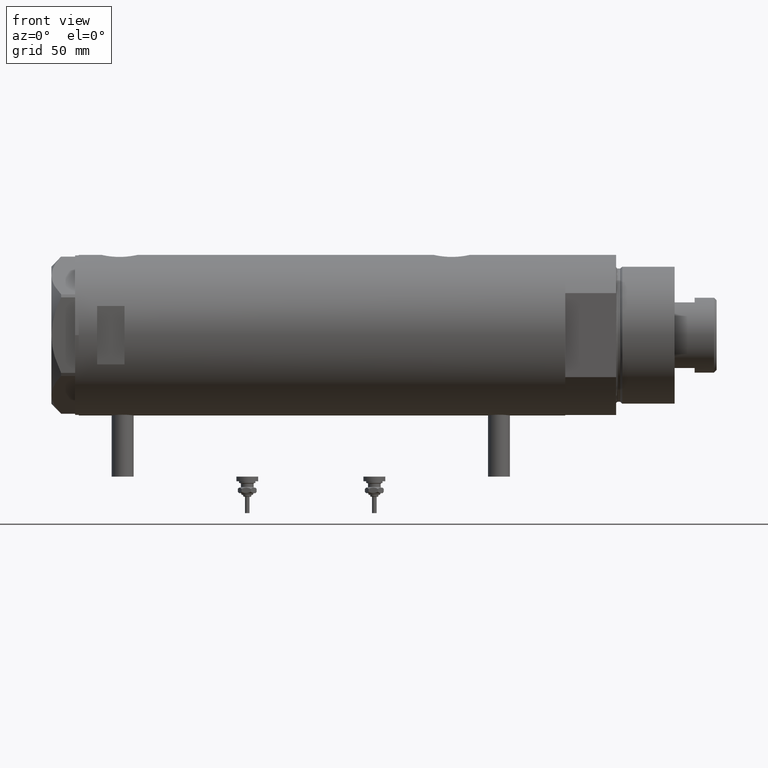
[diagram: clean part render]
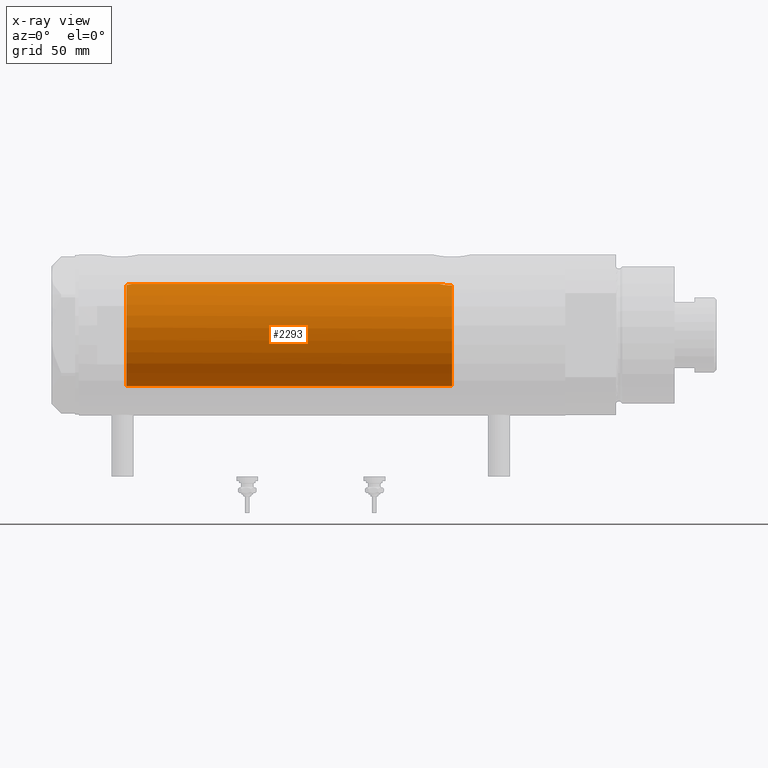
[diagram: x-ray — body ghosted, one internal face saturated and labeled with its STEP entity id]
A machine part, front view, then the same camera in x-ray: the body is ghosted and one INTERNAL B-rep face — a face not visible from any outside direction — is saturated and labeled: STEP entity #2293.
In plain terms, the highlighted cylindrical surface (partial cylindrical patch) has radius 28 mm, axis along (1, 0, -0).
Its self-contained STEP definition (entity closure, byte-faithful):
#26 = EDGE_CURVE ( 'NONE', #5754, #2008, #974, .T. ) ;
#43 = VERTEX_POINT ( 'NONE', #237 ) ;
#130 = VECTOR ( 'NONE', #2543, 1000.000000000000000 ) ;
#237 = CARTESIAN_POINT ( 'NONE',  ( 27.46622653369043121, -5.441176343402230664, 107.1999999999999886 ) ) ;
#260 = DIRECTION ( 'NONE',  ( 0.000000000000000000, 0.000000000000000000, -1.000000000000000000 ) ) ;
#265 = AXIS2_PLACEMENT_3D ( 'NONE', #3896, #2107, #5848 ) ;
#298 = CARTESIAN_POINT ( 'NONE',  ( 27.43032278742160912, -5.620674311437150017, -67.67201933177626927 ) ) ;
#326 = CARTESIAN_POINT ( 'NONE',  ( 27.36461315879793688, -5.931995402771978121, -68.24427370164927709 ) ) ;
#402 = DIRECTION ( 'NONE',  ( -1.000000000000000000, 0.000000000000000000, 0.000000000000000000 ) ) ;
#520 = CARTESIAN_POINT ( 'NONE',  ( -28.00000000000000000, 0.000000000000000000, 133.1999999999999886 ) ) ;
#686 = CARTESIAN_POINT ( 'NONE',  ( 27.71590503262371641, -3.984646725731645578, 105.6568856620623507 ) ) ;
#759 = CARTESIAN_POINT ( 'NONE',  ( 27.34439869716138460, -6.024183900845911488, -68.44423424753804852 ) ) ;
#786 = CARTESIAN_POINT ( 'NONE',  ( 27.59002303441815229, -4.790793940098343029, 106.3581617652145752 ) ) ;
#795 = CARTESIAN_POINT ( 'NONE',  ( 27.98730817101647617, -0.8707001454186236167, -64.57418472479976401 ) ) ;
#822 = CARTESIAN_POINT ( 'NONE',  ( 27.86589383012873711, -2.744524676092587434, -65.11575755532261667 ) ) ;
#974 = LINE ( 'NONE', #520, #130 ) ;
#1049 = VERTEX_POINT ( 'NONE', #4712 ) ;
#1058 = CARTESIAN_POINT ( 'NONE',  ( 28.00000000000000000, 3.429011037612588487E-15, 133.1999999999999886 ) ) ;
#1063 = VERTEX_POINT ( 'NONE', #1902 ) ;
#1140 = CARTESIAN_POINT ( 'NONE',  ( 0.000000000000000000, 0.000000000000000000, -71.19999999999998863 ) ) ;
#1195 = CARTESIAN_POINT ( 'NONE',  ( 27.92172852149585793, -2.107204279616225584, 104.6607593279537269 ) ) ;
#1208 = CARTESIAN_POINT ( 'NONE',  ( 27.94978721344213923, -1.729827962054674151, -64.73650615356601179 ) ) ;
#1229 = CARTESIAN_POINT ( 'NONE',  ( 27.68450581507583763, -4.196237264393388067, 105.8246780296441329 ) ) ;
#1279 = CARTESIAN_POINT ( 'NONE',  ( 27.50152613123827905, -5.265397630035334231, -67.13030070339347333 ) ) ;
#1294 = B_SPLINE_CURVE_WITH_KNOTS ( 'NONE', 3,
 ( #4882, #1711, #3083, #5419, #3487, #759, #326, #4950, #298, #1279, #2188, #5351, #2573, #5745, #5288, #4921, #822, #5777, #1208, #4003, #795, #3518, #1654, #2135 ),
 .UNSPECIFIED., .F., .F.,
 ( 4, 2, 2, 2, 2, 2, 2, 2, 2, 2, 2, 4 ),
 ( 0.01022506235776658202, 0.01152748911132699637, 0.01282991586488741245, 0.01348112924166763697, 0.01413234261844786323, 0.01543476937200835217, 0.01673719612556883937, 0.01738840950234907257, 0.01803962287912930576, 0.01934204963268975480, 0.01999326300946997412, 0.02064447638625019343 ),
 .UNSPECIFIED. ) ;
#1386 = CARTESIAN_POINT ( 'NONE',  ( 27.46622653369043121, -5.441176343402230664, 107.1999999999999886 ) ) ;
#1552 = DIRECTION ( 'NONE',  ( -1.000000000000000000, 0.000000000000000000, 0.000000000000000000 ) ) ;
#1654 = CARTESIAN_POINT ( 'NONE',  ( 28.00000000000000000, -0.2171842281426346610, -64.52000000000001023 ) ) ;
#1701 = CARTESIAN_POINT ( 'NONE',  ( 27.77532582369375191, -3.546840381797769393, 105.3513442352566472 ) ) ;
#1711 = CARTESIAN_POINT ( 'NONE',  ( 27.21445766202533889, -6.585843933871728062, -70.76551644800676399 ) ) ;
#1813 = CARTESIAN_POINT ( 'NONE',  ( 27.21605408577812213, -6.579240077698945477, -71.19999999999998863 ) ) ;
#1902 = CARTESIAN_POINT ( 'NONE',  ( 28.00000000000000000, 0.000000000000000000, 104.3199999999999790 ) ) ;
#1950 = ORIENTED_EDGE ( 'NONE', *, *, #5414, .F. ) ;
#2008 = VERTEX_POINT ( 'NONE', #2814 ) ;
#2107 = DIRECTION ( 'NONE',  ( 0.000000000000000000, 0.000000000000000000, 1.000000000000000000 ) ) ;
#2135 = CARTESIAN_POINT ( 'NONE',  ( 28.00000000000000000, 8.058211040172173087E-16, -64.51999999999999602 ) ) ;
#2152 = CARTESIAN_POINT ( 'NONE',  ( 27.80347162683809614, -3.320043793664068321, 105.2127974257676470 ) ) ;
#2188 = CARTESIAN_POINT ( 'NONE',  ( 27.55308463769900484, -4.992385646466225069, -66.79156508565561978 ) ) ;
#2204 = EDGE_CURVE ( 'NONE', #3494, #2008, #4591, .T. ) ;
#2268 = CYLINDRICAL_SURFACE ( 'NONE', #2864, 28.00000000000000000 ) ;
#2293 = ADVANCED_FACE ( 'NONE', ( #4143 ), #2268, .F. ) ;
#2434 = LINE ( 'NONE', #1058, #4507 ) ;
#2543 = DIRECTION ( 'NONE',  ( -0.000000000000000000, -0.000000000000000000, -1.000000000000000000 ) ) ;
#2573 = CARTESIAN_POINT ( 'NONE',  ( 27.70817449315709879, -4.048115514111796820, -65.89463981057743069 ) ) ;
#2582 = AXIS2_PLACEMENT_3D ( 'NONE', #1140, #260, #1552 ) ;
#2684 = ORIENTED_EDGE ( 'NONE', *, *, #5303, .T. ) ;
#2814 = CARTESIAN_POINT ( 'NONE',  ( -28.00000000000000000, 0.000000000000000000, -71.19999999999998863 ) ) ;
#2851 = ORIENTED_EDGE ( 'NONE', *, *, #4649, .T. ) ;
#2864 = AXIS2_PLACEMENT_3D ( 'NONE', #3123, #4503, #402 ) ;
#2875 = EDGE_CURVE ( 'NONE', #1063, #43, #5948, .T. ) ;
#2903 = DIRECTION ( 'NONE',  ( -0.000000000000000000, -0.000000000000000000, -1.000000000000000000 ) ) ;
#2981 = CARTESIAN_POINT ( 'NONE',  ( 27.94009016578283777, -1.849003963078880153, 104.5794787532051231 ) ) ;
#3035 = CARTESIAN_POINT ( 'NONE',  ( 27.87937907436174001, -2.608343522657389446, 104.8531017779723982 ) ) ;
#3068 = CARTESIAN_POINT ( 'NONE',  ( 27.98432695902670275, -1.071102777755447599, 104.3858034427758952 ) ) ;
#3083 = CARTESIAN_POINT ( 'NONE',  ( 27.22359243188622813, -6.548490838374237732, -70.32326656774588969 ) ) ;
#3123 = CARTESIAN_POINT ( 'NONE',  ( 0.000000000000000000, 0.000000000000000000, 133.1999999999999886 ) ) ;
#3280 = ORIENTED_EDGE ( 'NONE', *, *, #2204, .T. ) ;
#3478 = CARTESIAN_POINT ( 'NONE',  ( 28.00000000000000000, 0.000000000000000000, 104.3199999999999790 ) ) ;
#3487 = CARTESIAN_POINT ( 'NONE',  ( 27.28993558706078559, -6.267945658363885286, -69.05080727201159618 ) ) ;
#3494 = VERTEX_POINT ( 'NONE', #1813 ) ;
#3518 = CARTESIAN_POINT ( 'NONE',  ( 27.99747352180818893, -0.4347571716796926333, -64.53072531013187074 ) ) ;
#3896 = CARTESIAN_POINT ( 'NONE',  ( 0.000000000000000000, 0.000000000000000000, 107.1999999999999886 ) ) ;
#4003 = CARTESIAN_POINT ( 'NONE',  ( 27.97963188585491423, -1.089002775846577009, -64.60708365738665293 ) ) ;
#4143 = FACE_OUTER_BOUND ( 'NONE', #5871, .T. ) ;
#4305 = ORIENTED_EDGE ( 'NONE', *, *, #2875, .F. ) ;
#4503 = DIRECTION ( 'NONE',  ( -0.000000000000000000, -0.000000000000000000, -1.000000000000000000 ) ) ;
#4507 = VECTOR ( 'NONE', #2903, 1000.000000000000000 ) ;
#4565 = CARTESIAN_POINT ( 'NONE',  ( 27.52591771332016535, -5.139864392033251406, 106.7568941995207723 ) ) ;
#4590 = ORIENTED_EDGE ( 'NONE', *, *, #26, .F. ) ;
#4591 = CIRCLE ( 'NONE', #2582, 28.00000000000000000 ) ;
#4649 = EDGE_CURVE ( 'NONE', #5754, #43, #4787, .T. ) ;
#4712 = CARTESIAN_POINT ( 'NONE',  ( 28.00000000000000000, 8.058211040172173087E-16, -64.51999999999999602 ) ) ;
#4787 = CIRCLE ( 'NONE', #265, 28.00000000000000000 ) ;
#4867 = CARTESIAN_POINT ( 'NONE',  ( 27.85549665828546750, -2.850794839423820726, 104.9636768369876449 ) ) ;
#4882 = CARTESIAN_POINT ( 'NONE',  ( 27.21605408577812213, -6.579240077698945477, -71.19999999999998863 ) ) ;
#4921 = CARTESIAN_POINT ( 'NONE',  ( 27.84562549742225457, -2.942523713096127036, -65.21055141078905137 ) ) ;
#4950 = CARTESIAN_POINT ( 'NONE',  ( 27.40754191563009812, -5.730381220489945804, -67.85863096555546292 ) ) ;
#5157 = CARTESIAN_POINT ( 'NONE',  ( -28.00000000000000000, 0.000000000000000000, 107.1999999999999886 ) ) ;
#5288 = CARTESIAN_POINT ( 'NONE',  ( 27.80238224209238140, -3.326386449198553752, -65.41852099557870304 ) ) ;
#5303 = EDGE_CURVE ( 'NONE', #1063, #1049, #2434, .T. ) ;
#5340 = CARTESIAN_POINT ( 'NONE',  ( 28.00000000000001421, -0.5413643627070160447, 104.3199999999999648 ) ) ;
#5351 = CARTESIAN_POINT ( 'NONE',  ( 27.65700784474207907, -4.380217411398929173, -66.17047453774084431 ) ) ;
#5414 = EDGE_CURVE ( 'NONE', #3494, #1049, #1294, .T. ) ;
#5419 = CARTESIAN_POINT ( 'NONE',  ( 27.26146154097649443, -6.389008671741149392, -69.46702257288441729 ) ) ;
#5745 = CARTESIAN_POINT ( 'NONE',  ( 27.77950496257091828, -3.511644525604262324, -65.53121142391829324 ) ) ;
#5754 = VERTEX_POINT ( 'NONE', #5157 ) ;
#5777 = CARTESIAN_POINT ( 'NONE',  ( 27.92072186409136236, -2.143620579020482975, -64.86381653969046113 ) ) ;
#5848 = DIRECTION ( 'NONE',  ( 1.000000000000000000, 0.000000000000000000, 0.000000000000000000 ) ) ;
#5871 = EDGE_LOOP ( 'NONE', ( #4305, #2684, #1950, #3280, #4590, #2851 ) ) ;
#5948 = B_SPLINE_CURVE_WITH_KNOTS ( 'NONE', 3,
 ( #3478, #5340, #3068, #2981, #1195, #3035, #4867, #2152, #1701, #686, #1229, #786, #4565, #1386 ),
 .UNSPECIFIED., .F., .F.,
 ( 4, 2, 2, 2, 2, 2, 4 ),
 ( 2.584956204504771211E-19, 0.001600622945448066737, 0.002400934418172099780, 0.003201245890896132606, 0.004001557363620165432, 0.004801868836344196957, 0.006402491781792286028 ),
 .UNSPECIFIED. ) ;